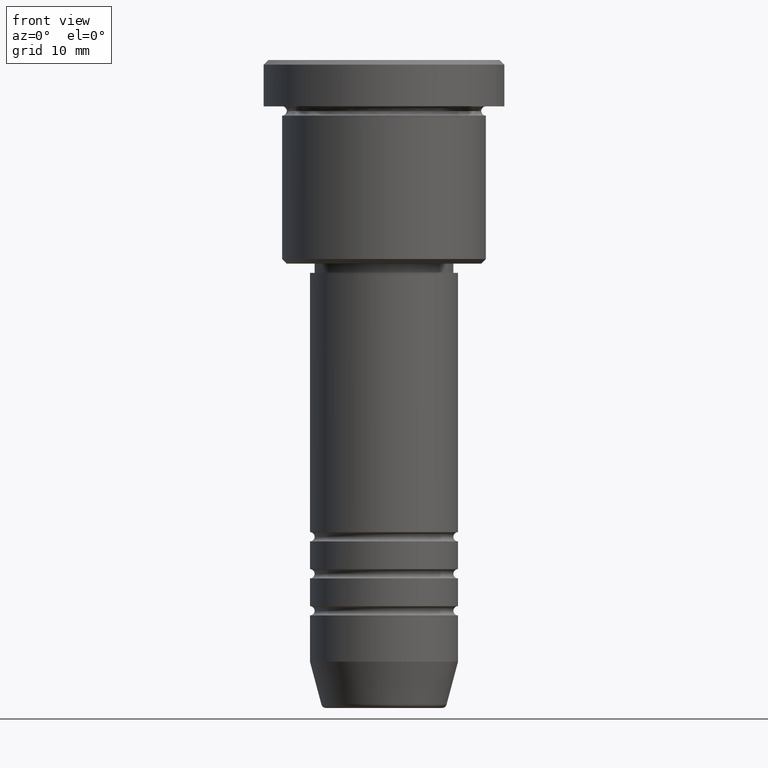
[diagram: clean part render]
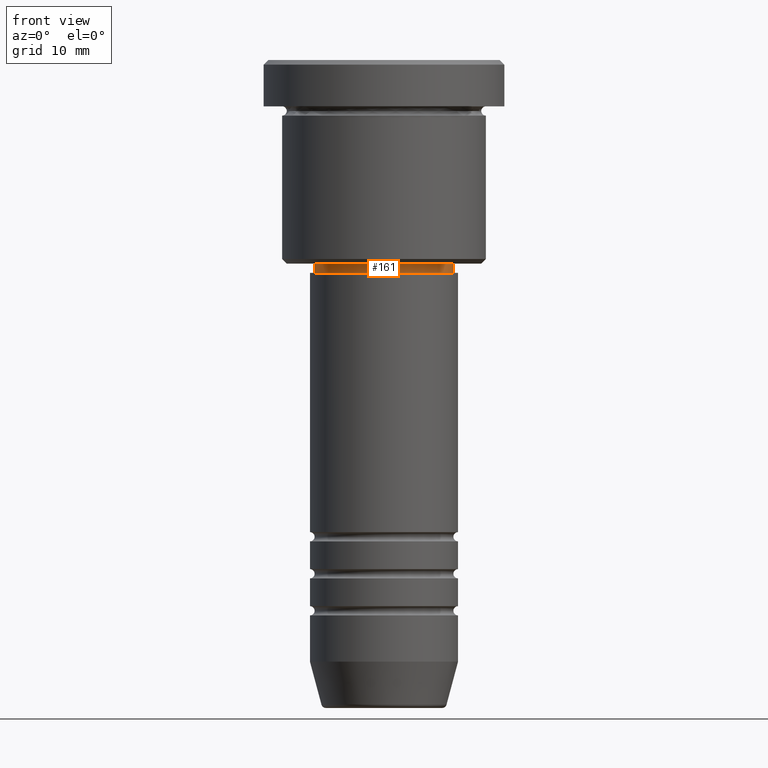
[diagram: same view with one face highlighted and labeled with its STEP entity id]
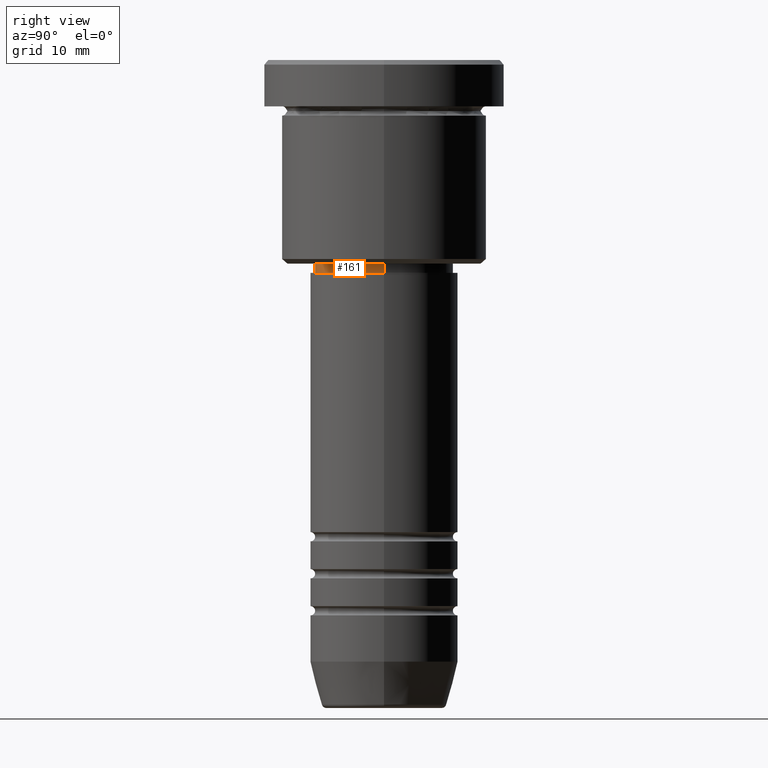
[diagram: same view with one face highlighted and labeled with its STEP entity id]
A machine part, front view. The second image highlights one B-rep face of the part: STEP entity #161.
A second angle (right view) of the same face is appended — the face is thin or edge-on in the first view.
In plain terms, the highlighted cylindrical surface (partial cylindrical patch) has radius 7.5 mm, axis along (-0, -0, 1).
Its self-contained STEP definition (entity closure, byte-faithful):
#9 = AXIS2_PLACEMENT_3D ( 'NONE', #761, #207, #572 ) ;
#42 = ORIENTED_EDGE ( 'NONE', *, *, #771, .F. ) ;
#50 = DIRECTION ( 'NONE',  ( 1.000000000000000000, 0.000000000000000000, 0.000000000000000000 ) ) ;
#59 = CARTESIAN_POINT ( 'NONE',  ( 0.000000000000000000, 0.000000000000000000, -22.00000000000000000 ) ) ;
#108 = LINE ( 'NONE', #1101, #296 ) ;
#112 = EDGE_CURVE ( 'NONE', #370, #513, #317, .T. ) ;
#161 = ADVANCED_FACE ( 'NONE', ( #875 ), #248, .T. ) ;
#189 = CARTESIAN_POINT ( 'NONE',  ( 7.500000000000000000, 0.000000000000000000, -23.00000000000000355 ) ) ;
#207 = DIRECTION ( 'NONE',  ( -0.000000000000000000, -0.000000000000000000, 1.000000000000000000 ) ) ;
#248 = CYLINDRICAL_SURFACE ( 'NONE', #512, 7.500000000000000000 ) ;
#276 = CARTESIAN_POINT ( 'NONE',  ( -7.500000000000000000, 9.184850993605147944E-16, -22.00000000000000000 ) ) ;
#296 = VECTOR ( 'NONE', #822, 1000.000000000000000 ) ;
#306 = EDGE_CURVE ( 'NONE', #949, #1004, #108, .T. ) ;
#317 = LINE ( 'NONE', #1027, #678 ) ;
#349 = ORIENTED_EDGE ( 'NONE', *, *, #112, .F. ) ;
#370 = VERTEX_POINT ( 'NONE', #576 ) ;
#380 = CIRCLE ( 'NONE', #852, 7.500000000000000000 ) ;
#388 = CARTESIAN_POINT ( 'NONE',  ( 7.500000000000000000, 0.000000000000000000, -22.00000000000000000 ) ) ;
#407 = ORIENTED_EDGE ( 'NONE', *, *, #306, .T. ) ;
#432 = DIRECTION ( 'NONE',  ( -0.000000000000000000, -0.000000000000000000, 1.000000000000000000 ) ) ;
#494 = ORIENTED_EDGE ( 'NONE', *, *, #619, .T. ) ;
#512 = AXIS2_PLACEMENT_3D ( 'NONE', #1141, #432, #50 ) ;
#513 = VERTEX_POINT ( 'NONE', #276 ) ;
#517 = CIRCLE ( 'NONE', #9, 7.500000000000000000 ) ;
#572 = DIRECTION ( 'NONE',  ( 1.000000000000000000, 0.000000000000000000, 0.000000000000000000 ) ) ;
#576 = CARTESIAN_POINT ( 'NONE',  ( -7.500000000000000000, 9.184850993605147944E-16, -23.00000000000000355 ) ) ;
#619 = EDGE_CURVE ( 'NONE', #370, #949, #517, .T. ) ;
#678 = VECTOR ( 'NONE', #753, 1000.000000000000000 ) ;
#733 = DIRECTION ( 'NONE',  ( 1.000000000000000000, 0.000000000000000000, 0.000000000000000000 ) ) ;
#753 = DIRECTION ( 'NONE',  ( -0.000000000000000000, -0.000000000000000000, 1.000000000000000000 ) ) ;
#761 = CARTESIAN_POINT ( 'NONE',  ( 0.000000000000000000, 0.000000000000000000, -23.00000000000000355 ) ) ;
#771 = EDGE_CURVE ( 'NONE', #513, #1004, #380, .T. ) ;
#822 = DIRECTION ( 'NONE',  ( -0.000000000000000000, -0.000000000000000000, 1.000000000000000000 ) ) ;
#852 = AXIS2_PLACEMENT_3D ( 'NONE', #59, #1157, #733 ) ;
#875 = FACE_OUTER_BOUND ( 'NONE', #1168, .T. ) ;
#949 = VERTEX_POINT ( 'NONE', #189 ) ;
#1004 = VERTEX_POINT ( 'NONE', #388 ) ;
#1027 = CARTESIAN_POINT ( 'NONE',  ( -7.500000000000000000, 9.184850993605147944E-16, 0.000000000000000000 ) ) ;
#1101 = CARTESIAN_POINT ( 'NONE',  ( 7.500000000000000000, 0.000000000000000000, 0.000000000000000000 ) ) ;
#1141 = CARTESIAN_POINT ( 'NONE',  ( 0.000000000000000000, 0.000000000000000000, 0.000000000000000000 ) ) ;
#1157 = DIRECTION ( 'NONE',  ( -0.000000000000000000, -0.000000000000000000, 1.000000000000000000 ) ) ;
#1168 = EDGE_LOOP ( 'NONE', ( #349, #494, #407, #42 ) ) ;